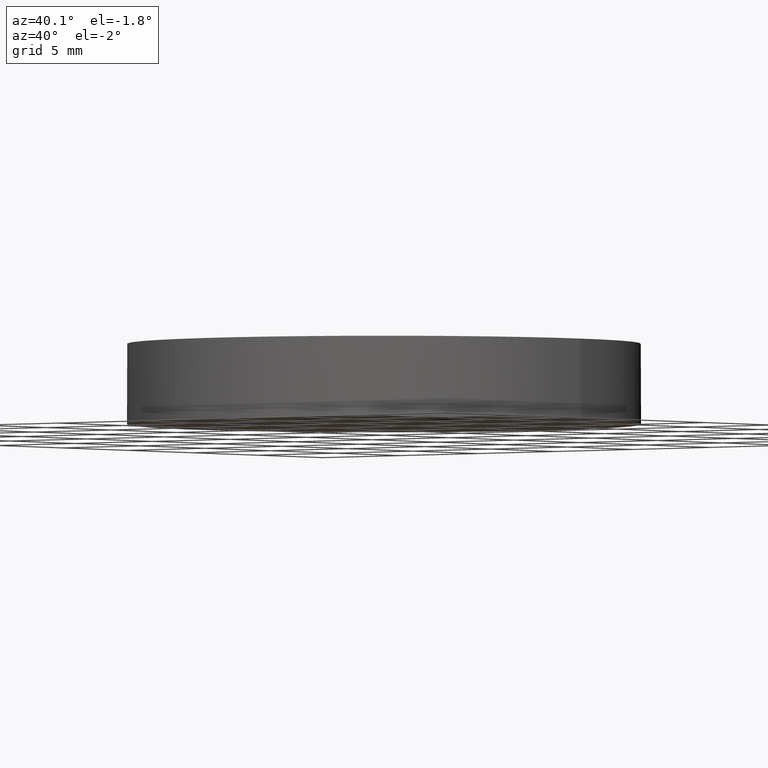
[diagram: clean part render]
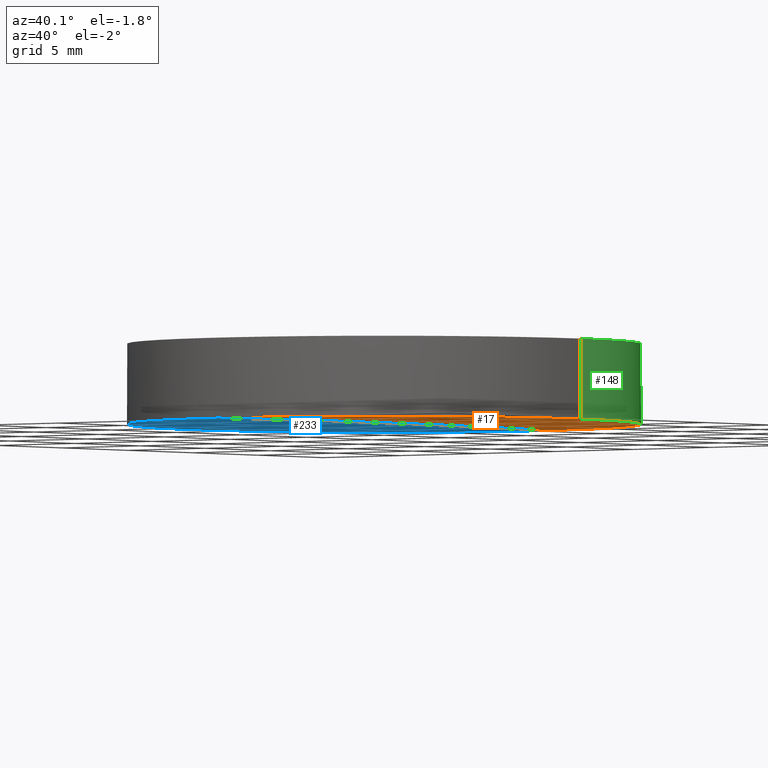
[diagram: same view with three faces highlighted in distinct colors, each labeled with its STEP entity id]
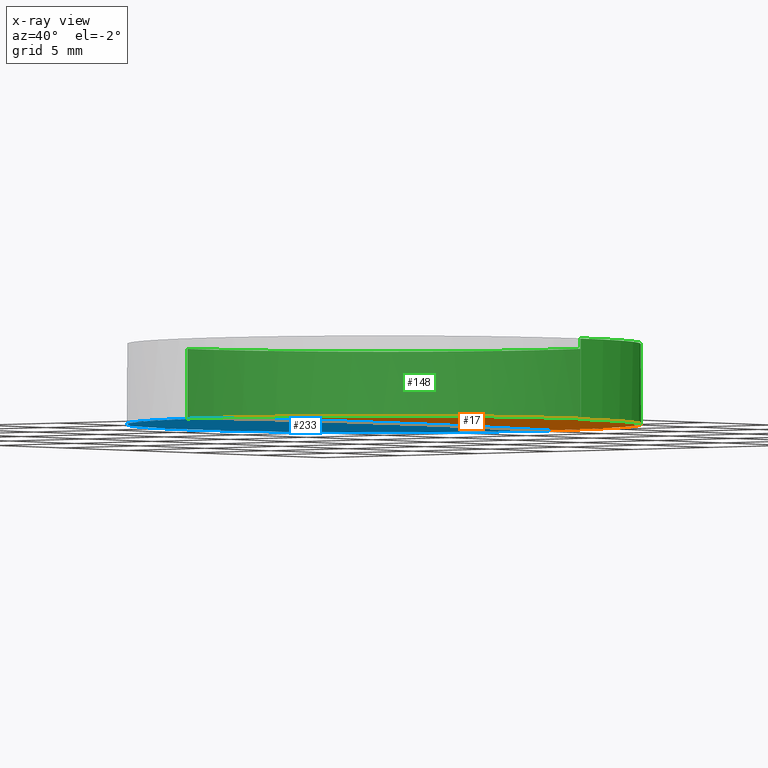
[diagram: x-ray of the same camera — body ghosted, the three highlighted faces saturated]
A machine part, auxiliary view with three faces highlighted in distinct colors.
The next image is the same camera in x-ray (body ghosted, the three faces saturated) — at least one of them is partly hidden behind the body in this view.
Their STEP definitions:

[orange] entity #17 — the highlighted face is a freeform B-spline surface patch.
#2 = CARTESIAN_POINT ( 'NONE',  ( -3.410605131648479400E-013, 4.284350124377257700, 0.02655075362691400000 ) ) ;
#6 = CARTESIAN_POINT ( 'NONE',  ( -3.410605131648479900E-013, 12.69999999999737700, -0.07777051506895968400 ) ) ;
#17 = ADVANCED_FACE ( 'NONE', ( #201 ), #217, .F. ) ;
#25 = CARTESIAN_POINT ( 'NONE',  ( 8.517870741822543200, -4.284350124377328800, 0.0003142336375662477100 ) ) ;
#29 = CARTESIAN_POINT ( 'NONE',  ( -3.410605131648479900E-013, -12.85239224256306700, -0.07964818234795778600 ) ) ;
#31 = CARTESIAN_POINT ( 'NONE',  ( -3.410605131648479400E-013, -4.284350124377328800, 0.02655075362691268500 ) ) ;
#36 = EDGE_CURVE ( 'NONE', #158, #113, #79, .T. ) ;
#41 = CARTESIAN_POINT ( 'NONE',  ( 4.258539627846998200, 12.85239224256299200, -0.07964818234795779900 ) ) ;
#44 = CARTESIAN_POINT ( 'NONE',  ( 8.517870741822543200, 4.284350124377256800, 0.0003142336375675622500 ) ) ;
#45 = CARTESIAN_POINT ( 'NONE',  ( 4.996003610813200500E-016, 2.442490654175340100E-015, -0.07777051506895491000 ) ) ;
#71 = VERTEX_POINT ( 'NONE', #141 ) ;
#79 = CIRCLE ( 'NONE', #132, 12.69999999999999900 ) ;
#84 = EDGE_CURVE ( 'NONE', #113, #71, #230, .T. ) ;
#98 = CARTESIAN_POINT ( 'NONE',  ( -3.410605131648479900E-013, -1.136868377216160000E-013, -1037.000000000000000 ) ) ;
#103 = CARTESIAN_POINT ( 'NONE',  ( 12.77652327018045500, -4.284350124377328800, -0.05215781067789412900 ) ) ;
#104 = EDGE_CURVE ( 'NONE', #71, #158, #143, .T. ) ;
#113 = VERTEX_POINT ( 'NONE', #6 ) ;
#116 = CARTESIAN_POINT ( 'NONE',  ( 12.77521486281541000, 12.85239224256299600, -0.1583486863328285000 ) ) ;
#121 = CARTESIAN_POINT ( 'NONE',  ( 4.258975777428295500, -4.284350124377328800, 0.02655075362691268100 ) ) ;
#123 = DIRECTION ( 'NONE',  ( 1.000000000000000000, 0.0000000000000000000, 0.0000000000000000000 ) ) ;
#124 = CARTESIAN_POINT ( 'NONE',  ( 12.77521486281541200, -12.85239224256306700, -0.1583486863328285000 ) ) ;
#132 = AXIS2_PLACEMENT_3D ( 'NONE', #221, #176, #207 ) ;
#138 = CARTESIAN_POINT ( 'NONE',  ( 12.77652327018045500, 4.284350124377257700, -0.05215781067789281700 ) ) ;
#141 = CARTESIAN_POINT ( 'NONE',  ( -3.410605131648479900E-013, -12.69999999999749100, -0.07777051506895968400 ) ) ;
#143 = CIRCLE ( 'NONE', #145, 12.69999999999999900 ) ;
#144 = ORIENTED_EDGE ( 'NONE', *, *, #84, .F. ) ;
#145 = AXIS2_PLACEMENT_3D ( 'NONE', #45, #208, #177 ) ;
#153 = CARTESIAN_POINT ( 'NONE',  ( -3.410605131648479900E-013, 12.85239224256299600, -0.07964818234795778600 ) ) ;
#158 = VERTEX_POINT ( 'NONE', #162 ) ;
#162 = CARTESIAN_POINT ( 'NONE',  ( 12.69999999999999900, 2.442490654175340100E-015, -0.07777051506895491000 ) ) ;
#166 = ORIENTED_EDGE ( 'NONE', *, *, #104, .F. ) ;
#169 = CARTESIAN_POINT ( 'NONE',  ( 8.516998450935782100, 12.85239224256299200, -0.1058820155300044900 ) ) ;
#173 = CARTESIAN_POINT ( 'NONE',  ( 4.258975777428295500, 4.284350124377256800, 0.02655075362691399600 ) ) ;
#176 = DIRECTION ( 'NONE',  ( 0.0000000000000000000, 0.0000000000000000000, 1.000000000000000000 ) ) ;
#177 = DIRECTION ( 'NONE',  ( 1.000000000000000000, 0.0000000000000000000, 0.0000000000000000000 ) ) ;
#192 = CARTESIAN_POINT ( 'NONE',  ( 8.516998450935782100, -12.85239224256306300, -0.1058820155300044900 ) ) ;
#193 = DIRECTION ( 'NONE',  ( 0.0000000000000000000, 1.000000000000000000, 4.282441753616804200E-016 ) ) ;
#200 = AXIS2_PLACEMENT_3D ( 'NONE', #98, #123, #193 ) ;
#201 = FACE_OUTER_BOUND ( 'NONE', #204, .T. ) ;
#204 = EDGE_LOOP ( 'NONE', ( #144, #232, #166 ) ) ;
#207 = DIRECTION ( 'NONE',  ( 1.000000000000000000, 0.0000000000000000000, 0.0000000000000000000 ) ) ;
#208 = DIRECTION ( 'NONE',  ( 0.0000000000000000000, 0.0000000000000000000, 1.000000000000000000 ) ) ;
#217 =( BOUNDED_SURFACE ( )  B_SPLINE_SURFACE ( 3, 3, ( 
 ( #153, #41, #169, #116 ),
 ( #2, #173, #44, #138 ),
 ( #31, #121, #25, #103 ),
 ( #29, #225, #192, #124 ) ),
 .UNSPECIFIED., .F., .F., .F. ) 
 B_SPLINE_SURFACE_WITH_KNOTS ( ( 4, 4 ),
 ( 4, 4 ),
 ( 0.0000000000000000000, 1.000000000000000000 ),
 ( 0.0000000000000000000, 1.000000000000000000 ),
 .UNSPECIFIED. ) 
 GEOMETRIC_REPRESENTATION_ITEM ( )  RATIONAL_B_SPLINE_SURFACE ( (
 ( 1.000000000000000000, 0.9999873501613832900, 0.9999873501613832900, 1.000000000000000000),
 ( 0.9999487957683395000, 0.9999361465774481200, 0.9999361465774481200, 0.9999487957683395000),
 ( 0.9999487957683395000, 0.9999361465774481200, 0.9999361465774481200, 0.9999487957683395000),
 ( 1.000000000000000000, 0.9999873501613832900, 0.9999873501613832900, 1.000000000000000000) ) ) 
 REPRESENTATION_ITEM ( '' )  SURFACE ( )  );
#221 = CARTESIAN_POINT ( 'NONE',  ( 4.996003610813200500E-016, 2.442490654175340100E-015, -0.07777051506895491000 ) ) ;
#225 = CARTESIAN_POINT ( 'NONE',  ( 4.258539627846998200, -12.85239224256306300, -0.07964818234795779900 ) ) ;
#230 = CIRCLE ( 'NONE', #200, 1037.000000000000000 ) ;
#232 = ORIENTED_EDGE ( 'NONE', *, *, #36, .F. ) ;

[blue] entity #233 — the highlighted face is a freeform B-spline surface patch.
#6 = CARTESIAN_POINT ( 'NONE',  ( -3.410605131648479900E-013, 12.69999999999737700, -0.07777051506895968400 ) ) ;
#7 = DIRECTION ( 'NONE',  ( 1.000000000000000000, 0.0000000000000000000, 0.0000000000000000000 ) ) ;
#10 = CARTESIAN_POINT ( 'NONE',  ( -12.77652327018106800, -4.284350124377328800, -0.05215781067786433300 ) ) ;
#24 = ORIENTED_EDGE ( 'NONE', *, *, #65, .F. ) ;
#33 = CARTESIAN_POINT ( 'NONE',  ( -8.517870741823264400, -4.284350124377328800, 0.0003142336375944166300 ) ) ;
#34 = CIRCLE ( 'NONE', #150, 12.69999999999999900 ) ;
#35 = CARTESIAN_POINT ( 'NONE',  ( -12.77521486281602500, -12.85239224256306700, -0.1583486863327987500 ) ) ;
#38 = EDGE_LOOP ( 'NONE', ( #88, #213, #24 ) ) ;
#49 = CARTESIAN_POINT ( 'NONE',  ( -12.77521486281602500, 12.85239224256299600, -0.1583486863327987500 ) ) ;
#65 = EDGE_CURVE ( 'NONE', #197, #71, #34, .T. ) ;
#67 = CARTESIAN_POINT ( 'NONE',  ( -4.258539627847823400, 12.85239224256299200, -0.07964818234793520600 ) ) ;
#68 = CARTESIAN_POINT ( 'NONE',  ( -4.258975777429124100, -4.284350124377328800, 0.02655075362693526700 ) ) ;
#69 = CARTESIAN_POINT ( 'NONE',  ( -4.258975777429124100, 4.284350124377256800, 0.02655075362693656800 ) ) ;
#71 = VERTEX_POINT ( 'NONE', #141 ) ;
#84 = EDGE_CURVE ( 'NONE', #113, #71, #230, .T. ) ;
#85 = CARTESIAN_POINT ( 'NONE',  ( 4.996003610813200500E-016, 2.442490654175340100E-015, -0.07777051506895491000 ) ) ;
#87 = CARTESIAN_POINT ( 'NONE',  ( -5.932754287840680300E-013, -12.85239224256306700, -0.07964818234793416600 ) ) ;
#88 = ORIENTED_EDGE ( 'NONE', *, *, #165, .F. ) ;
#98 = CARTESIAN_POINT ( 'NONE',  ( -3.410605131648479900E-013, -1.136868377216160000E-013, -1037.000000000000000 ) ) ;
#110 = CARTESIAN_POINT ( 'NONE',  ( -12.77652327018106800, 4.284350124377257700, -0.05215781067786303500 ) ) ;
#113 = VERTEX_POINT ( 'NONE', #6 ) ;
#120 = AXIS2_PLACEMENT_3D ( 'NONE', #85, #228, #196 ) ;
#123 = DIRECTION ( 'NONE',  ( 1.000000000000000000, 0.0000000000000000000, 0.0000000000000000000 ) ) ;
#126 = CARTESIAN_POINT ( 'NONE',  ( -8.516998450936505100, -12.85239224256306300, -0.1058820155299763400 ) ) ;
#127 = CARTESIAN_POINT ( 'NONE',  ( -5.932754287840680300E-013, 12.85239224256299600, -0.07964818234793416600 ) ) ;
#130 =( BOUNDED_SURFACE ( )  B_SPLINE_SURFACE ( 3, 3, ( 
 ( #49, #178, #67, #127 ),
 ( #110, #179, #69, #226 ),
 ( #10, #33, #68, #198 ),
 ( #35, #126, #181, #87 ) ),
 .UNSPECIFIED., .F., .F., .F. ) 
 B_SPLINE_SURFACE_WITH_KNOTS ( ( 4, 4 ),
 ( 4, 4 ),
 ( 0.0000000000000000000, 1.000000000000000000 ),
 ( 0.0000000000000000000, 1.000000000000000000 ),
 .UNSPECIFIED. ) 
 GEOMETRIC_REPRESENTATION_ITEM ( )  RATIONAL_B_SPLINE_SURFACE ( (
 ( 1.000000000000000000, 0.9999873501613832900, 0.9999873501613832900, 1.000000000000000000),
 ( 0.9999487957683395000, 0.9999361465774481200, 0.9999361465774481200, 0.9999487957683395000),
 ( 0.9999487957683395000, 0.9999361465774481200, 0.9999361465774481200, 0.9999487957683395000),
 ( 1.000000000000000000, 0.9999873501613832900, 0.9999873501613832900, 1.000000000000000000) ) ) 
 REPRESENTATION_ITEM ( '' )  SURFACE ( )  );
#137 = CARTESIAN_POINT ( 'NONE',  ( 4.996003610813200500E-016, 2.442490654175340100E-015, -0.07777051506895491000 ) ) ;
#141 = CARTESIAN_POINT ( 'NONE',  ( -3.410605131648479900E-013, -12.69999999999749100, -0.07777051506895968400 ) ) ;
#150 = AXIS2_PLACEMENT_3D ( 'NONE', #137, #220, #7 ) ;
#160 = CIRCLE ( 'NONE', #120, 12.69999999999999900 ) ;
#165 = EDGE_CURVE ( 'NONE', #113, #197, #160, .T. ) ;
#178 = CARTESIAN_POINT ( 'NONE',  ( -8.516998450936505100, 12.85239224256299200, -0.1058820155299763400 ) ) ;
#179 = CARTESIAN_POINT ( 'NONE',  ( -8.517870741823264400, 4.284350124377256800, 0.0003142336375957177300 ) ) ;
#181 = CARTESIAN_POINT ( 'NONE',  ( -4.258539627847823400, -12.85239224256306300, -0.07964818234793520600 ) ) ;
#193 = DIRECTION ( 'NONE',  ( 0.0000000000000000000, 1.000000000000000000, 4.282441753616804200E-016 ) ) ;
#196 = DIRECTION ( 'NONE',  ( 1.000000000000000000, 0.0000000000000000000, 0.0000000000000000000 ) ) ;
#197 = VERTEX_POINT ( 'NONE', #211 ) ;
#198 = CARTESIAN_POINT ( 'NONE',  ( -5.950101522600447300E-013, -4.284350124377328800, 0.02655075362693631200 ) ) ;
#200 = AXIS2_PLACEMENT_3D ( 'NONE', #98, #123, #193 ) ;
#203 = FACE_OUTER_BOUND ( 'NONE', #38, .T. ) ;
#211 = CARTESIAN_POINT ( 'NONE',  ( -12.69999999999999900, 3.997792089092478900E-015, -0.07777051506895491000 ) ) ;
#213 = ORIENTED_EDGE ( 'NONE', *, *, #84, .T. ) ;
#220 = DIRECTION ( 'NONE',  ( 0.0000000000000000000, 0.0000000000000000000, 1.000000000000000000 ) ) ;
#226 = CARTESIAN_POINT ( 'NONE',  ( -5.950101522600447300E-013, 4.284350124377257700, 0.02655075362693761300 ) ) ;
#228 = DIRECTION ( 'NONE',  ( 0.0000000000000000000, 0.0000000000000000000, 1.000000000000000000 ) ) ;
#230 = CIRCLE ( 'NONE', #200, 1037.000000000000000 ) ;
#233 = ADVANCED_FACE ( 'NONE', ( #203 ), #130, .F. ) ;

[green] entity #148 — the highlighted cylindrical surface (partial cylindrical patch) has radius 12.7 mm, axis along (0, 0, 1).
#6 = CARTESIAN_POINT ( 'NONE',  ( -3.410605131648479900E-013, 12.69999999999737700, -0.07777051506895968400 ) ) ;
#8 = DIRECTION ( 'NONE',  ( 1.000000000000000000, 0.0000000000000000000, 0.0000000000000000000 ) ) ;
#11 = EDGE_LOOP ( 'NONE', ( #92, #216, #119, #184, #21 ) ) ;
#14 = VECTOR ( 'NONE', #89, 1000.000000000000000 ) ;
#16 = VERTEX_POINT ( 'NONE', #94 ) ;
#21 = ORIENTED_EDGE ( 'NONE', *, *, #22, .F. ) ;
#22 = EDGE_CURVE ( 'NONE', #158, #16, #47, .T. ) ;
#30 = CIRCLE ( 'NONE', #80, 12.69999999999999900 ) ;
#32 = CARTESIAN_POINT ( 'NONE',  ( -12.69999999999999900, 3.997792089092478900E-015, -0.07777051506895491000 ) ) ;
#36 = EDGE_CURVE ( 'NONE', #158, #113, #79, .T. ) ;
#46 = FACE_OUTER_BOUND ( 'NONE', #11, .T. ) ;
#47 = LINE ( 'NONE', #194, #231 ) ;
#79 = CIRCLE ( 'NONE', #132, 12.69999999999999900 ) ;
#80 = AXIS2_PLACEMENT_3D ( 'NONE', #106, #111, #83 ) ;
#83 = DIRECTION ( 'NONE',  ( 1.000000000000000000, 0.0000000000000000000, 0.0000000000000000000 ) ) ;
#85 = CARTESIAN_POINT ( 'NONE',  ( 4.996003610813200500E-016, 2.442490654175340100E-015, -0.07777051506895491000 ) ) ;
#89 = DIRECTION ( 'NONE',  ( 0.0000000000000000000, 0.0000000000000000000, 1.000000000000000000 ) ) ;
#92 = ORIENTED_EDGE ( 'NONE', *, *, #36, .T. ) ;
#94 = CARTESIAN_POINT ( 'NONE',  ( 12.69999999999999900, 2.442490654175340100E-015, 3.899999999999999900 ) ) ;
#106 = CARTESIAN_POINT ( 'NONE',  ( 4.996003610813200500E-016, 2.442490654175340100E-015, 3.899999999999999900 ) ) ;
#109 = VERTEX_POINT ( 'NONE', #223 ) ;
#111 = DIRECTION ( 'NONE',  ( -0.0000000000000000000, -0.0000000000000000000, -1.000000000000000000 ) ) ;
#113 = VERTEX_POINT ( 'NONE', #6 ) ;
#115 = CYLINDRICAL_SURFACE ( 'NONE', #214, 12.69999999999999900 ) ;
#119 = ORIENTED_EDGE ( 'NONE', *, *, #151, .T. ) ;
#120 = AXIS2_PLACEMENT_3D ( 'NONE', #85, #228, #196 ) ;
#132 = AXIS2_PLACEMENT_3D ( 'NONE', #221, #176, #207 ) ;
#140 = EDGE_CURVE ( 'NONE', #109, #16, #30, .T. ) ;
#148 = ADVANCED_FACE ( 'NONE', ( #46 ), #115, .T. ) ;
#151 = EDGE_CURVE ( 'NONE', #197, #109, #186, .T. ) ;
#155 = DIRECTION ( 'NONE',  ( 0.0000000000000000000, 0.0000000000000000000, 1.000000000000000000 ) ) ;
#158 = VERTEX_POINT ( 'NONE', #162 ) ;
#160 = CIRCLE ( 'NONE', #120, 12.69999999999999900 ) ;
#161 = DIRECTION ( 'NONE',  ( 0.0000000000000000000, 0.0000000000000000000, 1.000000000000000000 ) ) ;
#162 = CARTESIAN_POINT ( 'NONE',  ( 12.69999999999999900, 2.442490654175340100E-015, -0.07777051506895491000 ) ) ;
#165 = EDGE_CURVE ( 'NONE', #113, #197, #160, .T. ) ;
#176 = DIRECTION ( 'NONE',  ( 0.0000000000000000000, 0.0000000000000000000, 1.000000000000000000 ) ) ;
#184 = ORIENTED_EDGE ( 'NONE', *, *, #140, .T. ) ;
#186 = LINE ( 'NONE', #32, #14 ) ;
#194 = CARTESIAN_POINT ( 'NONE',  ( 12.69999999999999900, 2.442490654175340100E-015, -0.07777051506895491000 ) ) ;
#196 = DIRECTION ( 'NONE',  ( 1.000000000000000000, 0.0000000000000000000, 0.0000000000000000000 ) ) ;
#197 = VERTEX_POINT ( 'NONE', #211 ) ;
#199 = CARTESIAN_POINT ( 'NONE',  ( 4.996003610813200500E-016, 2.442490654175340100E-015, -0.07777051506895491000 ) ) ;
#207 = DIRECTION ( 'NONE',  ( 1.000000000000000000, 0.0000000000000000000, 0.0000000000000000000 ) ) ;
#211 = CARTESIAN_POINT ( 'NONE',  ( -12.69999999999999900, 3.997792089092478900E-015, -0.07777051506895491000 ) ) ;
#214 = AXIS2_PLACEMENT_3D ( 'NONE', #199, #161, #8 ) ;
#216 = ORIENTED_EDGE ( 'NONE', *, *, #165, .T. ) ;
#221 = CARTESIAN_POINT ( 'NONE',  ( 4.996003610813200500E-016, 2.442490654175340100E-015, -0.07777051506895491000 ) ) ;
#223 = CARTESIAN_POINT ( 'NONE',  ( -12.69999999999999900, 3.997792089092478900E-015, 3.899999999999999900 ) ) ;
#228 = DIRECTION ( 'NONE',  ( 0.0000000000000000000, 0.0000000000000000000, 1.000000000000000000 ) ) ;
#231 = VECTOR ( 'NONE', #155, 1000.000000000000000 ) ;